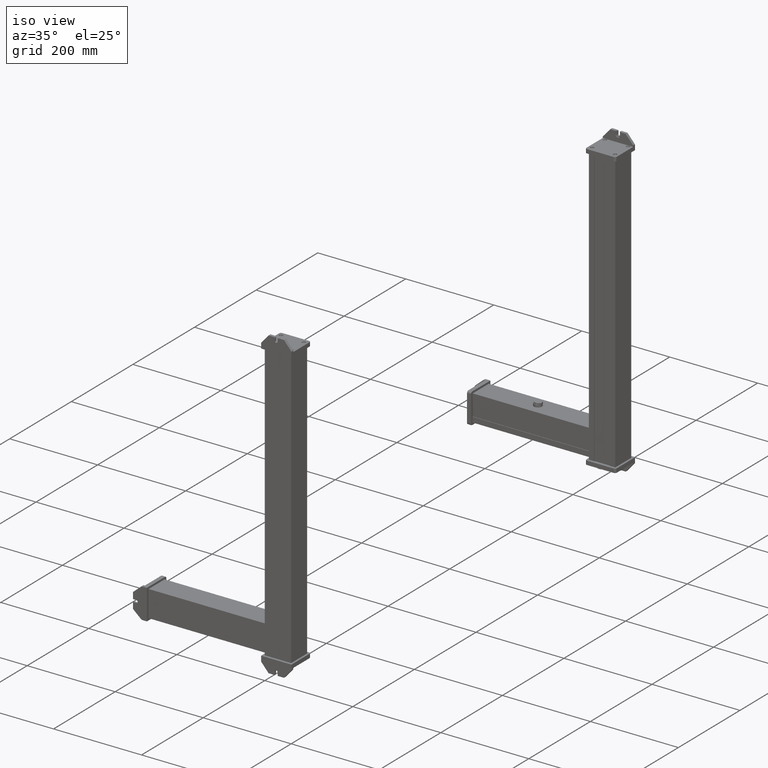
[diagram: clean part render]
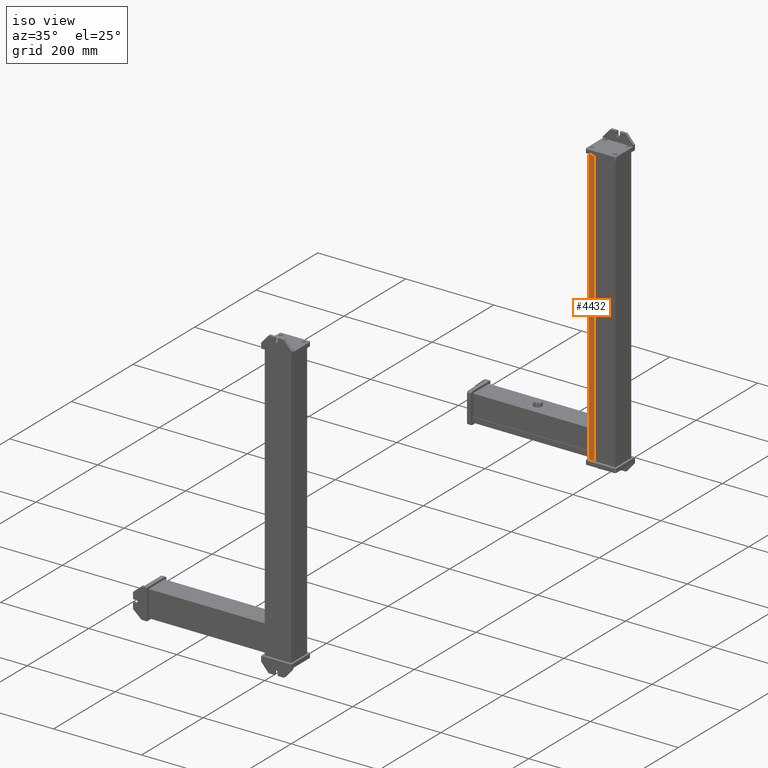
[diagram: same view with one face highlighted and labeled with its STEP entity id]
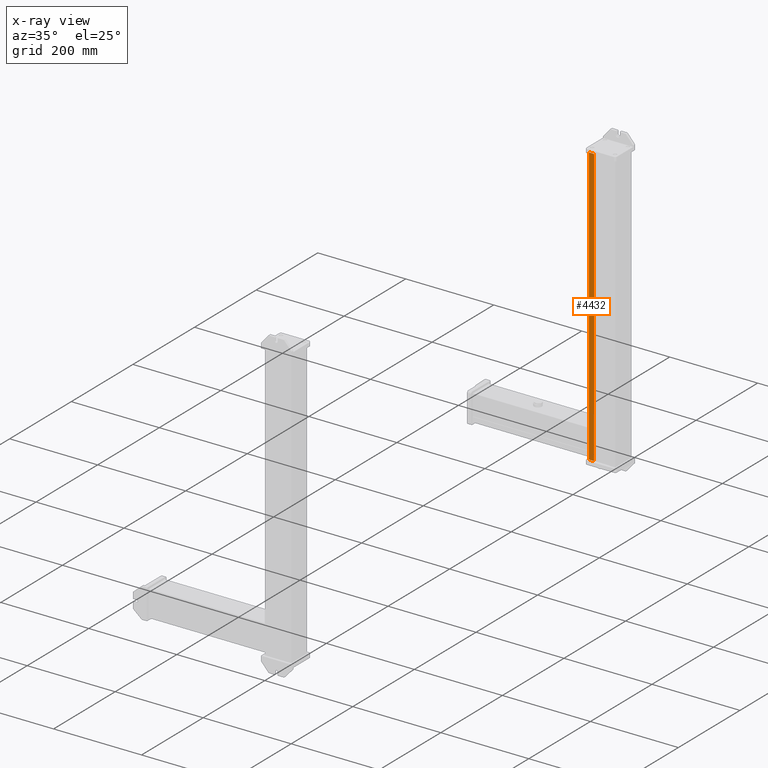
[diagram: x-ray of the same camera — body ghosted, the highlighted face saturated]
A machine part, iso view. The second image highlights one B-rep face of the part: STEP entity #4432.
The next image is the same camera in x-ray: the body ghosted, the highlighted face saturated — about 0% of this face is hidden behind the body in this view.
In plain terms, the highlighted planar face has unit normal (0, -1, 0).
Its self-contained STEP definition (entity closure, byte-faithful):
#4380=CARTESIAN_POINT('Vertex',(60.,52.,0.)) ;
#4383=CARTESIAN_POINT('Line Origine',(60.,52.,315.5)) ;
#4387=CARTESIAN_POINT('Vertex',(60.,52.,631.)) ;
#4402=CARTESIAN_POINT('Axis2P3D Location',(60.,52.,0.)) ;
#4407=CARTESIAN_POINT('Line Origine',(54.,52.,0.)) ;
#4411=CARTESIAN_POINT('Vertex',(48.,52.,0.)) ;
#4414=CARTESIAN_POINT('Line Origine',(48.,52.,315.5)) ;
#4418=CARTESIAN_POINT('Vertex',(48.,52.,631.)) ;
#4421=CARTESIAN_POINT('Line Origine',(54.,52.,631.)) ;
#4384=DIRECTION('Vector Direction',(0.,0.,1.)) ;
#4403=DIRECTION('Axis2P3D Direction',(0.,1.,-0.)) ;
#4404=DIRECTION('Axis2P3D XDirection',(-1.,0.,0.)) ;
#4408=DIRECTION('Vector Direction',(-1.,0.,0.)) ;
#4415=DIRECTION('Vector Direction',(0.,0.,1.)) ;
#4422=DIRECTION('Vector Direction',(-1.,0.,0.)) ;
#4405=AXIS2_PLACEMENT_3D('Plane Axis2P3D',#4402,#4403,#4404) ;
#4427=ORIENTED_EDGE('',*,*,#4389,.F.) ;
#4428=ORIENTED_EDGE('',*,*,#4413,.T.) ;
#4429=ORIENTED_EDGE('',*,*,#4420,.T.) ;
#4430=ORIENTED_EDGE('',*,*,#4425,.F.) ;
#4385=VECTOR('Line Direction',#4384,1.) ;
#4409=VECTOR('Line Direction',#4408,1.) ;
#4416=VECTOR('Line Direction',#4415,1.) ;
#4423=VECTOR('Line Direction',#4422,1.) ;
#4432=ADVANCED_FACE('PartBody',(#4431),#4406,.T.) ;
#4389=EDGE_CURVE('',#4381,#4388,#4386,.T.) ;
#4413=EDGE_CURVE('',#4381,#4412,#4410,.T.) ;
#4420=EDGE_CURVE('',#4412,#4419,#4417,.T.) ;
#4425=EDGE_CURVE('',#4388,#4419,#4424,.T.) ;
#4426=EDGE_LOOP('',(#4427,#4428,#4429,#4430)) ;
#4431=FACE_OUTER_BOUND('',#4426,.T.) ;
#4386=LINE('Line',#4383,#4385) ;
#4410=LINE('Line',#4407,#4409) ;
#4417=LINE('Line',#4414,#4416) ;
#4424=LINE('Line',#4421,#4423) ;
#4406=PLANE('Plane',#4405) ;
#4381=VERTEX_POINT('',#4380) ;
#4388=VERTEX_POINT('',#4387) ;
#4412=VERTEX_POINT('',#4411) ;
#4419=VERTEX_POINT('',#4418) ;